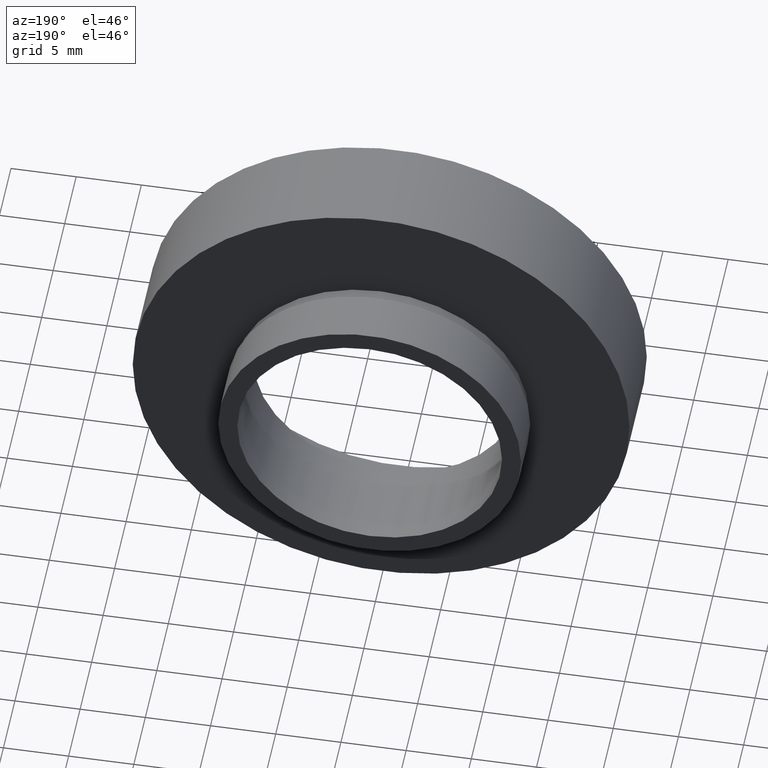
[diagram: clean part render]
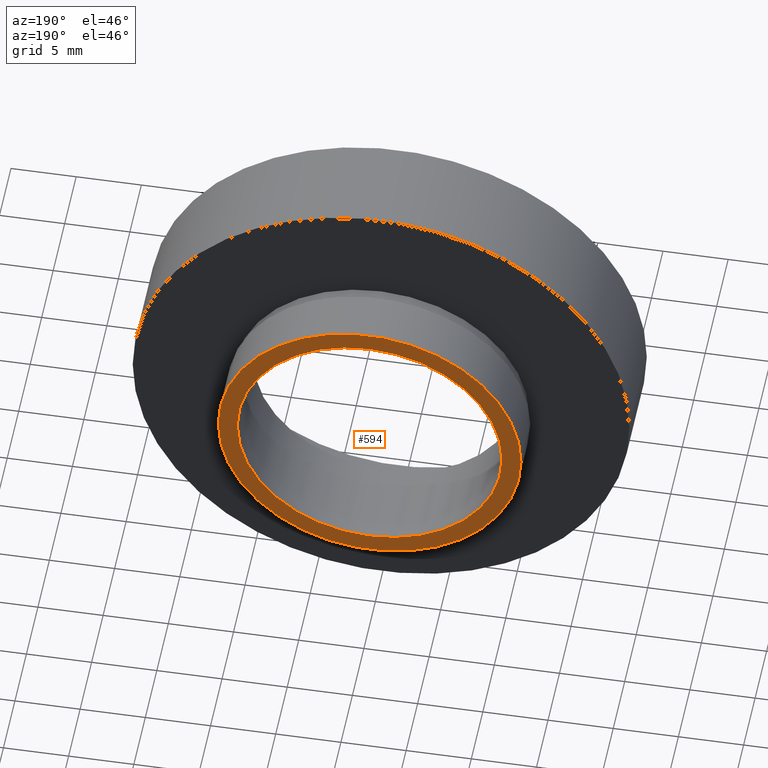
[diagram: same view with one face highlighted and labeled with its STEP entity id]
A machine part, auxiliary view. The second image highlights one B-rep face of the part: STEP entity #594.
In plain terms, the highlighted planar face has unit normal (0, -1, 0).
Its self-contained STEP definition (entity closure, byte-faithful):
#3 = CARTESIAN_POINT ( 'NONE',  ( 10.15000000000000000, 12.49999999999999800, 1.243016501134563700E-015 ) ) ;
#14 = VERTEX_POINT ( 'NONE', #74 ) ;
#21 = CARTESIAN_POINT ( 'NONE',  ( -10.15000000000000000, 12.49999999999999500, 0.0000000000000000000 ) ) ;
#33 = CARTESIAN_POINT ( 'NONE',  ( 5.371323195044473300E-016, 12.49999999999999600, 0.0000000000000000000 ) ) ;
#62 = EDGE_CURVE ( 'NONE', #427, #143, #544, .T. ) ;
#64 = AXIS2_PLACEMENT_3D ( 'NONE', #541, #576, #200 ) ;
#70 = VERTEX_POINT ( 'NONE', #326 ) ;
#74 = CARTESIAN_POINT ( 'NONE',  ( -11.60999999999999900, 12.49999999999999300, 0.0000000000000000000 ) ) ;
#94 = DIRECTION ( 'NONE',  ( -1.224646799147351000E-016, 1.000000000000000000, -0.0000000000000000000 ) ) ;
#124 = CIRCLE ( 'NONE', #130, 11.60999999999999900 ) ;
#130 = AXIS2_PLACEMENT_3D ( 'NONE', #239, #535, #476 ) ;
#134 = DIRECTION ( 'NONE',  ( 1.000000000000000000, 1.224646799147351000E-016, 0.0000000000000000000 ) ) ;
#143 = VERTEX_POINT ( 'NONE', #3 ) ;
#188 = PLANE ( 'NONE',  #280 ) ;
#189 = ORIENTED_EDGE ( 'NONE', *, *, #290, .F. ) ;
#200 = DIRECTION ( 'NONE',  ( -1.000000000000000000, -1.709087168450056200E-016, 0.0000000000000000000 ) ) ;
#239 = CARTESIAN_POINT ( 'NONE',  ( 5.371323195044477300E-016, 12.49999999999999500, 0.0000000000000000000 ) ) ;
#243 = FACE_BOUND ( 'NONE', #322, .T. ) ;
#257 = EDGE_CURVE ( 'NONE', #14, #70, #342, .T. ) ;
#273 = FACE_OUTER_BOUND ( 'NONE', #421, .T. ) ;
#280 = AXIS2_PLACEMENT_3D ( 'NONE', #624, #336, #134 ) ;
#290 = EDGE_CURVE ( 'NONE', #143, #427, #355, .T. ) ;
#322 = EDGE_LOOP ( 'NONE', ( #572, #189 ) ) ;
#326 = CARTESIAN_POINT ( 'NONE',  ( 11.60999999999999900, 12.49999999999999600, 1.421814933810076900E-015 ) ) ;
#336 = DIRECTION ( 'NONE',  ( 1.224646799147351000E-016, -1.000000000000000000, 0.0000000000000000000 ) ) ;
#342 = CIRCLE ( 'NONE', #487, 11.60999999999999900 ) ;
#355 = CIRCLE ( 'NONE', #64, 10.15000000000000000 ) ;
#421 = EDGE_LOOP ( 'NONE', ( #446, #509 ) ) ;
#422 = DIRECTION ( 'NONE',  ( -1.000000000000000000, -1.709087168450056200E-016, 0.0000000000000000000 ) ) ;
#424 = CARTESIAN_POINT ( 'NONE',  ( 5.371323195044477300E-016, 12.49999999999999500, 0.0000000000000000000 ) ) ;
#425 = DIRECTION ( 'NONE',  ( -1.000000000000000000, -1.494163200669084600E-016, 0.0000000000000000000 ) ) ;
#427 = VERTEX_POINT ( 'NONE', #21 ) ;
#446 = ORIENTED_EDGE ( 'NONE', *, *, #257, .T. ) ;
#462 = DIRECTION ( 'NONE',  ( -1.224646799147351000E-016, 1.000000000000000000, -0.0000000000000000000 ) ) ;
#476 = DIRECTION ( 'NONE',  ( -1.000000000000000000, -1.494163200669084600E-016, 0.0000000000000000000 ) ) ;
#487 = AXIS2_PLACEMENT_3D ( 'NONE', #424, #94, #425 ) ;
#495 = AXIS2_PLACEMENT_3D ( 'NONE', #33, #462, #422 ) ;
#509 = ORIENTED_EDGE ( 'NONE', *, *, #581, .T. ) ;
#535 = DIRECTION ( 'NONE',  ( -1.224646799147351000E-016, 1.000000000000000000, -0.0000000000000000000 ) ) ;
#541 = CARTESIAN_POINT ( 'NONE',  ( 5.371323195044473300E-016, 12.49999999999999600, 0.0000000000000000000 ) ) ;
#544 = CIRCLE ( 'NONE', #495, 10.15000000000000000 ) ;
#572 = ORIENTED_EDGE ( 'NONE', *, *, #62, .F. ) ;
#576 = DIRECTION ( 'NONE',  ( -1.224646799147351000E-016, 1.000000000000000000, -0.0000000000000000000 ) ) ;
#581 = EDGE_CURVE ( 'NONE', #70, #14, #124, .T. ) ;
#594 = ADVANCED_FACE ( 'NONE', ( #243, #273 ), #188, .F. ) ;
#624 = CARTESIAN_POINT ( 'NONE',  ( 10.15000000000000000, 12.49999999999999600, 0.0000000000000000000 ) ) ;